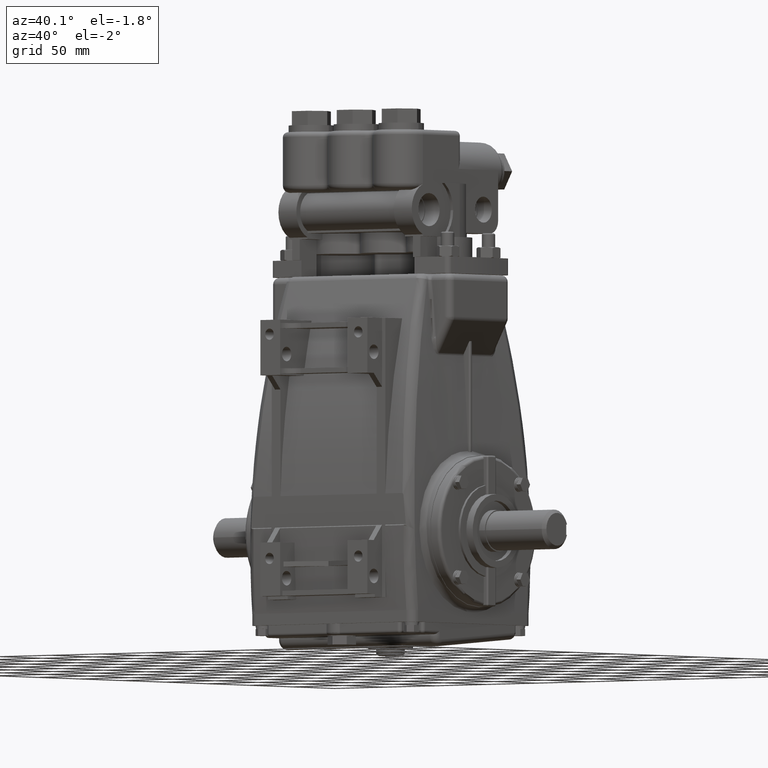
[diagram: clean part render]
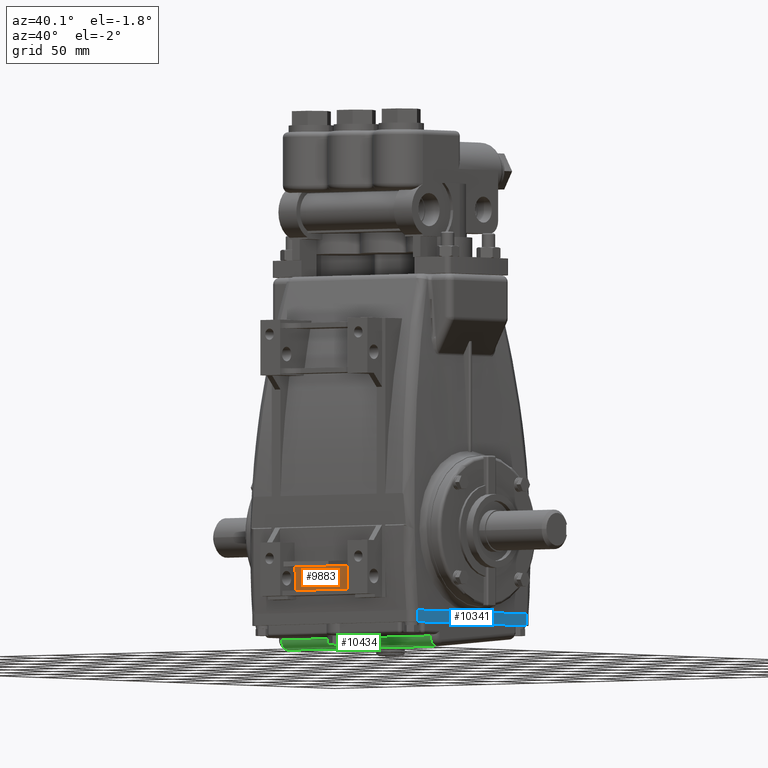
[diagram: same view with three faces highlighted in distinct colors, each labeled with its STEP entity id]
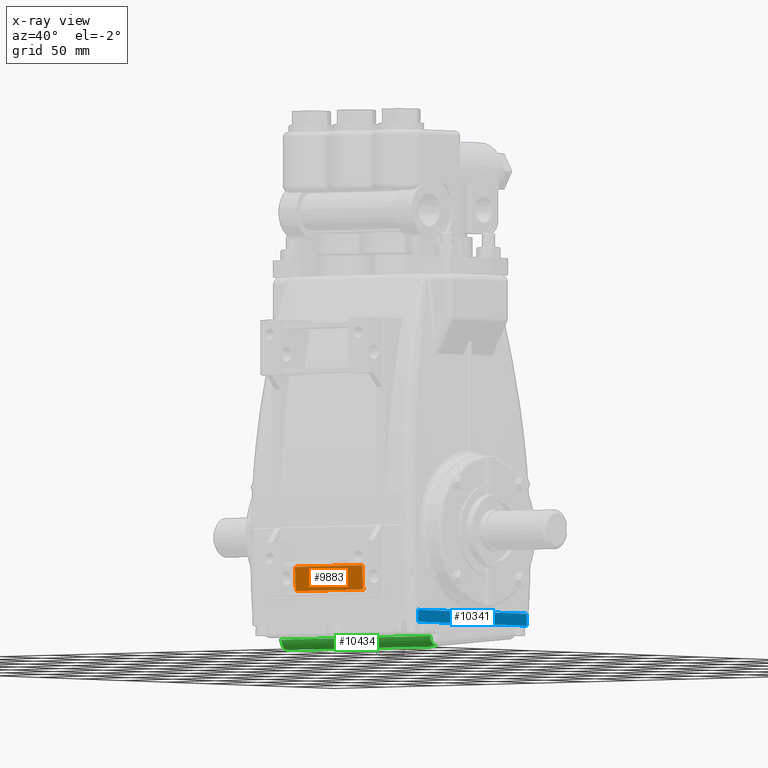
[diagram: x-ray of the same camera — body ghosted, the three highlighted faces saturated]
A machine part, auxiliary view with three faces highlighted in distinct colors.
The next image is the same camera in x-ray (body ghosted, the three faces saturated) — at least one of them is partly hidden behind the body in this view.
Their STEP definitions:

[orange] entity #9883 — the highlighted cylindrical surface (partial cylindrical patch) has radius 634.291 mm, axis along (-1, -0, -0).
#8245 = VERTEX_POINT ( 'NONE', #31842 ) ;
#8342 = VERTEX_POINT ( 'NONE', #31953 ) ;
#8345 = EDGE_CURVE ( 'NONE', #8342, #8245, #31951, .T. ) ;
#9304 = EDGE_CURVE ( 'NONE', #8245, #9308, #40999, .T. ) ;
#9308 = VERTEX_POINT ( 'NONE', #40989 ) ;
#9424 = VERTEX_POINT ( 'NONE', #41272 ) ;
#9428 = EDGE_CURVE ( 'NONE', #9424, #8342, #41298, .T. ) ;
#9883 = ADVANCED_FACE ( 'NONE', ( #42490 ), #42471, .T. ) ;
#9885 = EDGE_LOOP ( 'NONE', ( #9886, #9887, #9889, #9890 ) ) ;
#9886 = ORIENTED_EDGE ( 'NONE', *, *, #8345, .F. ) ;
#9887 = ORIENTED_EDGE ( 'NONE', *, *, #9428, .F. ) ;
#9889 = ORIENTED_EDGE ( 'NONE', *, *, #9915, .F. ) ;
#9890 = ORIENTED_EDGE ( 'NONE', *, *, #9304, .F. ) ;
#9915 = EDGE_CURVE ( 'NONE', #9308, #9424, #42602, .T. ) ;
#31842 = CARTESIAN_POINT ( 'NONE',  ( -1.314000000000001400, -2.816421159485837900, -1.759999999999998900 ) ) ;
#31948 = DIRECTION ( 'NONE',  ( -1.000000000000000000, -0.0000000000000000000, -0.0000000000000000000 ) ) ;
#31949 = VECTOR ( 'NONE', #31948, 39.37007874015748100 ) ;
#31950 = CARTESIAN_POINT ( 'NONE',  ( 3.193499999999999800, -2.816421159485837900, -1.759999999999999600 ) ) ;
#31951 = LINE ( 'NONE', #31950, #31949 ) ;
#31953 = CARTESIAN_POINT ( 'NONE',  ( 1.313999999999998300, -2.816421159485837900, -1.759999999999999600 ) ) ;
#40989 = CARTESIAN_POINT ( 'NONE',  ( -1.314000000000001400, -2.859196854713203200, -1.035700249466493500 ) ) ;
#40995 = DIRECTION ( 'NONE',  ( 0.0000000000000000000, 0.0000000000000000000, -1.000000000000000000 ) ) ;
#40996 = DIRECTION ( 'NONE',  ( -1.000000000000000000, 0.0000000000000000000, -0.0000000000000000000 ) ) ;
#40997 = CARTESIAN_POINT ( 'NONE',  ( -1.314000000000001400, 22.08820325237938300, 0.07423032657123565500 ) ) ;
#40998 = AXIS2_PLACEMENT_3D ( 'NONE', #40997, #40996, #40995 ) ;
#40999 = CIRCLE ( 'NONE', #40998, 24.97207876783562600 ) ;
#41272 = CARTESIAN_POINT ( 'NONE',  ( 1.313999999999998300, -2.859196854713203200, -1.035700249466493100 ) ) ;
#41290 = DIRECTION ( 'NONE',  ( 0.0000000000000000000, 0.0000000000000000000, 1.000000000000000000 ) ) ;
#41291 = DIRECTION ( 'NONE',  ( 1.000000000000000000, -0.0000000000000000000, -0.0000000000000000000 ) ) ;
#41292 = CARTESIAN_POINT ( 'NONE',  ( 1.313999999999998300, 22.08820325237938300, 0.07423032657123565500 ) ) ;
#41293 = AXIS2_PLACEMENT_3D ( 'NONE', #41292, #41291, #41290 ) ;
#41298 = CIRCLE ( 'NONE', #41293, 24.97207876783562600 ) ;
#42470 = AXIS2_PLACEMENT_3D ( 'NONE', #42514, #42513, #42512 ) ;
#42471 = CYLINDRICAL_SURFACE ( 'NONE', #42470, 24.97207876783562600 ) ;
#42490 = FACE_OUTER_BOUND ( 'NONE', #9885, .T. ) ;
#42512 = DIRECTION ( 'NONE',  ( 0.0000000000000000000, 0.0000000000000000000, 1.000000000000000000 ) ) ;
#42513 = DIRECTION ( 'NONE',  ( -1.000000000000000000, -0.0000000000000000000, -0.0000000000000000000 ) ) ;
#42514 = CARTESIAN_POINT ( 'NONE',  ( 3.193499999999999800, 22.08820325237938300, 0.07423032657123565500 ) ) ;
#42598 = DIRECTION ( 'NONE',  ( 1.000000000000000000, 0.0000000000000000000, 0.0000000000000000000 ) ) ;
#42599 = VECTOR ( 'NONE', #42598, 39.37007874015748100 ) ;
#42600 = CARTESIAN_POINT ( 'NONE',  ( 3.193499999999999800, -2.859196854713203200, -1.035700249466493500 ) ) ;
#42602 = LINE ( 'NONE', #42600, #42599 ) ;

[blue] entity #10341 — the highlighted planar face has unit normal (-1, 0, -0).
#6864 = VERTEX_POINT ( 'NONE', #25949 ) ;
#6868 = EDGE_CURVE ( 'NONE', #6864, #6870, #25953, .T. ) ;
#6870 = VERTEX_POINT ( 'NONE', #26056 ) ;
#7883 = VERTEX_POINT ( 'NONE', #29901 ) ;
#7902 = VERTEX_POINT ( 'NONE', #29877 ) ;
#7904 = EDGE_CURVE ( 'NONE', #7902, #7906, #29941, .T. ) ;
#7906 = VERTEX_POINT ( 'NONE', #29937 ) ;
#7961 = VERTEX_POINT ( 'NONE', #30116 ) ;
#7965 = EDGE_CURVE ( 'NONE', #7961, #7883, #30226, .T. ) ;
#10284 = EDGE_CURVE ( 'NONE', #6870, #7902, #43801, .T. ) ;
#10337 = EDGE_CURVE ( 'NONE', #6864, #7883, #43934, .T. ) ;
#10341 = ADVANCED_FACE ( 'NONE', ( #43930 ), #43971, .F. ) ;
#10343 = EDGE_LOOP ( 'NONE', ( #10344, #10345, #10347, #10439, #10440, #10441 ) ) ;
#10344 = ORIENTED_EDGE ( 'NONE', *, *, #7965, .F. ) ;
#10345 = ORIENTED_EDGE ( 'NONE', *, *, #10346, .T. ) ;
#10346 = EDGE_CURVE ( 'NONE', #7961, #7906, #43965, .T. ) ;
#10347 = ORIENTED_EDGE ( 'NONE', *, *, #7904, .F. ) ;
#10439 = ORIENTED_EDGE ( 'NONE', *, *, #10284, .F. ) ;
#10440 = ORIENTED_EDGE ( 'NONE', *, *, #6868, .F. ) ;
#10441 = ORIENTED_EDGE ( 'NONE', *, *, #10337, .T. ) ;
#25949 = CARTESIAN_POINT ( 'NONE',  ( 3.193500000000002000, 2.508788990083119100, -2.749999999999999600 ) ) ;
#25953 = LINE ( 'NONE', #26059, #26058 ) ;
#26056 = CARTESIAN_POINT ( 'NONE',  ( 3.193499999999999800, -2.509751192942778700, -2.749999999999999600 ) ) ;
#26057 = DIRECTION ( 'NONE',  ( -4.354808998687124100E-016, -1.000000000000000000, 0.0000000000000000000 ) ) ;
#26058 = VECTOR ( 'NONE', #26057, 39.37007874015748100 ) ;
#26059 = CARTESIAN_POINT ( 'NONE',  ( 3.193500000000002000, 2.508788990083119100, -2.749999999999999600 ) ) ;
#29877 = CARTESIAN_POINT ( 'NONE',  ( 3.193499999999999800, -2.509751192942778700, -2.399999999999999500 ) ) ;
#29901 = CARTESIAN_POINT ( 'NONE',  ( 3.193499999999999800, 2.508788990083119100, -2.399999999999999500 ) ) ;
#29937 = CARTESIAN_POINT ( 'NONE',  ( 3.193500000000000700, -0.2687470930075391300, -2.399999999999999500 ) ) ;
#29938 = DIRECTION ( 'NONE',  ( -0.0000000000000000000, 1.000000000000000000, 4.948103592943783900E-017 ) ) ;
#29939 = VECTOR ( 'NONE', #29938, 39.37007874015748100 ) ;
#29940 = CARTESIAN_POINT ( 'NONE',  ( 3.193499999999999800, 2.759999999999999300, -2.399999999999999500 ) ) ;
#29941 = LINE ( 'NONE', #29940, #29939 ) ;
#30116 = CARTESIAN_POINT ( 'NONE',  ( 3.193500000000000700, 0.2687470930075394600, -2.399999999999999500 ) ) ;
#30223 = DIRECTION ( 'NONE',  ( -0.0000000000000000000, 1.000000000000000000, 4.948103592943783900E-017 ) ) ;
#30224 = VECTOR ( 'NONE', #30223, 39.37007874015748100 ) ;
#30225 = CARTESIAN_POINT ( 'NONE',  ( 3.193499999999999800, 2.759999999999999300, -2.399999999999999500 ) ) ;
#30226 = LINE ( 'NONE', #30225, #30224 ) ;
#43797 = DIRECTION ( 'NONE',  ( -0.0000000000000000000, 4.948103592943785700E-017, 1.000000000000000000 ) ) ;
#43798 = VECTOR ( 'NONE', #43797, 39.37007874015748100 ) ;
#43799 = CARTESIAN_POINT ( 'NONE',  ( 3.193499999999999800, -2.509751192942778700, -2.749999999999999600 ) ) ;
#43801 = LINE ( 'NONE', #43799, #43798 ) ;
#43930 = FACE_OUTER_BOUND ( 'NONE', #10343, .T. ) ;
#43931 = DIRECTION ( 'NONE',  ( -0.0000000000000000000, 4.948103592943785700E-017, 1.000000000000000000 ) ) ;
#43932 = VECTOR ( 'NONE', #43931, 39.37007874015748100 ) ;
#43933 = CARTESIAN_POINT ( 'NONE',  ( 3.193500000000002000, 2.508788990083119100, -2.749999999999999600 ) ) ;
#43934 = LINE ( 'NONE', #43933, #43932 ) ;
#43962 = DIRECTION ( 'NONE',  ( -4.524799989506026000E-016, -1.000000000000000000, 0.0000000000000000000 ) ) ;
#43963 = DIRECTION ( 'NONE',  ( -1.000000000000000000, 4.354808998687125100E-016, -2.154804605298768900E-032 ) ) ;
#43964 = AXIS2_PLACEMENT_3D ( 'NONE', #43969, #43963, #43962 ) ;
#43965 = CIRCLE ( 'NONE', #43964, 2.415000000000000000 ) ;
#43966 = DIRECTION ( 'NONE',  ( -4.354808998687125100E-016, -1.000000000000000000, 0.0000000000000000000 ) ) ;
#43967 = DIRECTION ( 'NONE',  ( -1.000000000000000000, 4.354808998687125100E-016, -2.154804605298768900E-032 ) ) ;
#43968 = CARTESIAN_POINT ( 'NONE',  ( 3.193500000000002000, 2.508788990083119100, -2.749999999999999600 ) ) ;
#43969 = CARTESIAN_POINT ( 'NONE',  ( 3.193500000000000700, 6.532213498030678200E-017, -3.232206907948148500E-033 ) ) ;
#43970 = AXIS2_PLACEMENT_3D ( 'NONE', #43968, #43967, #43966 ) ;
#43971 = PLANE ( 'NONE',  #43970 ) ;

[green] entity #10434 — the highlighted cylindrical surface (edge-blend (fillet) strip) has radius 7.62 mm, axis along (-1, -0, -0).
#10403 = EDGE_CURVE ( 'NONE', #40068, #40067, #44105, .T. ) ;
#10406 = ORIENTED_EDGE ( 'NONE', *, *, #40063, .T. ) ;
#10408 = ORIENTED_EDGE ( 'NONE', *, *, #10410, .T. ) ;
#10410 = EDGE_CURVE ( 'NONE', #40074, #10424, #44161, .T. ) ;
#10412 = ORIENTED_EDGE ( 'NONE', *, *, #10432, .T. ) ;
#10413 = ORIENTED_EDGE ( 'NONE', *, *, #10414, .T. ) ;
#10414 = EDGE_CURVE ( 'NONE', #10430, #40084, #44155, .T. ) ;
#10415 = ORIENTED_EDGE ( 'NONE', *, *, #40091, .T. ) ;
#10424 = VERTEX_POINT ( 'NONE', #44213 ) ;
#10430 = VERTEX_POINT ( 'NONE', #44208 ) ;
#10432 = EDGE_CURVE ( 'NONE', #10424, #10430, #44206, .T. ) ;
#10434 = ADVANCED_FACE ( 'NONE', ( #44202 ), #44243, .T. ) ;
#10436 = EDGE_LOOP ( 'NONE', ( #10437, #10406, #10408, #10412, #10413, #10415 ) ) ;
#10437 = ORIENTED_EDGE ( 'NONE', *, *, #10403, .F. ) ;
#26349 = DIRECTION ( 'NONE',  ( 0.0000000000000000000, 0.0000000000000000000, 1.000000000000000000 ) ) ;
#26351 = DIRECTION ( 'NONE',  ( -1.000000000000000000, -0.0000000000000000000, 0.0000000000000000000 ) ) ;
#26353 = CARTESIAN_POINT ( 'NONE',  ( 2.900000000000000400, -1.300000000000000000, -3.149999999999999500 ) ) ;
#26354 = AXIS2_PLACEMENT_3D ( 'NONE', #26353, #26351, #26349 ) ;
#26362 = CIRCLE ( 'NONE', #26354, 0.3000000000000001000 ) ;
#26502 = CARTESIAN_POINT ( 'NONE',  ( 2.900000000000000400, -1.274896647000307400, -3.448947857774851100 ) ) ;
#26504 = CARTESIAN_POINT ( 'NONE',  ( -2.900000000000000400, -1.274896647000307400, -3.448947857774851100 ) ) ;
#26556 = CARTESIAN_POINT ( 'NONE',  ( 2.900000000000000400, -1.300000000000000000, -3.449999999999999700 ) ) ;
#26653 = CARTESIAN_POINT ( 'NONE',  ( -2.900000000000000400, -1.300000000000000000, -3.449999999999999700 ) ) ;
#26680 = DIRECTION ( 'NONE',  ( 0.0000000000000000000, 0.0000000000000000000, 1.000000000000000000 ) ) ;
#26681 = DIRECTION ( 'NONE',  ( 1.000000000000000000, 0.0000000000000000000, -0.0000000000000000000 ) ) ;
#26683 = CARTESIAN_POINT ( 'NONE',  ( -2.900000000000000400, -1.300000000000000000, -3.149999999999999500 ) ) ;
#26684 = AXIS2_PLACEMENT_3D ( 'NONE', #26683, #26681, #26680 ) ;
#26685 = CIRCLE ( 'NONE', #26684, 0.3000000000000001000 ) ;
#40063 = EDGE_CURVE ( 'NONE', #40068, #40074, #26362, .T. ) ;
#40067 = VERTEX_POINT ( 'NONE', #26504 ) ;
#40068 = VERTEX_POINT ( 'NONE', #26502 ) ;
#40074 = VERTEX_POINT ( 'NONE', #26556 ) ;
#40084 = VERTEX_POINT ( 'NONE', #26653 ) ;
#40091 = EDGE_CURVE ( 'NONE', #40084, #40067, #26685, .T. ) ;
#44102 = DIRECTION ( 'NONE',  ( -1.000000000000000000, -0.0000000000000000000, -0.0000000000000000000 ) ) ;
#44103 = VECTOR ( 'NONE', #44102, 39.37007874015748100 ) ;
#44104 = CARTESIAN_POINT ( 'NONE',  ( 3.100000000000000100, -1.274896647000307400, -3.448947857774851100 ) ) ;
#44105 = LINE ( 'NONE', #44104, #44103 ) ;
#44151 = DIRECTION ( 'NONE',  ( 0.0000000000000000000, 0.0000000000000000000, 1.000000000000000000 ) ) ;
#44152 = DIRECTION ( 'NONE',  ( 1.000000000000000000, 0.0000000000000000000, -0.0000000000000000000 ) ) ;
#44153 = CARTESIAN_POINT ( 'NONE',  ( -2.900000000000000400, -1.300000000000000000, -3.149999999999999500 ) ) ;
#44154 = AXIS2_PLACEMENT_3D ( 'NONE', #44153, #44152, #44151 ) ;
#44155 = CIRCLE ( 'NONE', #44154, 0.3000000000000001000 ) ;
#44157 = DIRECTION ( 'NONE',  ( 0.0000000000000000000, 0.0000000000000000000, 1.000000000000000000 ) ) ;
#44158 = DIRECTION ( 'NONE',  ( -1.000000000000000000, -0.0000000000000000000, 0.0000000000000000000 ) ) ;
#44159 = CARTESIAN_POINT ( 'NONE',  ( 2.900000000000000400, -1.300000000000000000, -3.149999999999999500 ) ) ;
#44160 = AXIS2_PLACEMENT_3D ( 'NONE', #44159, #44158, #44157 ) ;
#44161 = CIRCLE ( 'NONE', #44160, 0.3000000000000001000 ) ;
#44202 = FACE_OUTER_BOUND ( 'NONE', #10436, .T. ) ;
#44203 = DIRECTION ( 'NONE',  ( -1.000000000000000000, -0.0000000000000000000, -0.0000000000000000000 ) ) ;
#44204 = VECTOR ( 'NONE', #44203, 39.37007874015748100 ) ;
#44205 = CARTESIAN_POINT ( 'NONE',  ( 3.100000000000000100, -1.599999999999999900, -3.149999999999999500 ) ) ;
#44206 = LINE ( 'NONE', #44205, #44204 ) ;
#44208 = CARTESIAN_POINT ( 'NONE',  ( -2.900000000000000400, -1.599999999999999900, -3.149999999999999500 ) ) ;
#44213 = CARTESIAN_POINT ( 'NONE',  ( 2.900000000000000400, -1.599999999999999900, -3.149999999999999500 ) ) ;
#44237 = DIRECTION ( 'NONE',  ( 0.0000000000000000000, 0.0000000000000000000, 1.000000000000000000 ) ) ;
#44238 = DIRECTION ( 'NONE',  ( -1.000000000000000000, -0.0000000000000000000, -0.0000000000000000000 ) ) ;
#44239 = CARTESIAN_POINT ( 'NONE',  ( 3.100000000000000100, -1.300000000000000000, -3.149999999999999500 ) ) ;
#44240 = AXIS2_PLACEMENT_3D ( 'NONE', #44239, #44238, #44237 ) ;
#44243 = CYLINDRICAL_SURFACE ( 'NONE', #44240, 0.3000000000000001000 ) ;